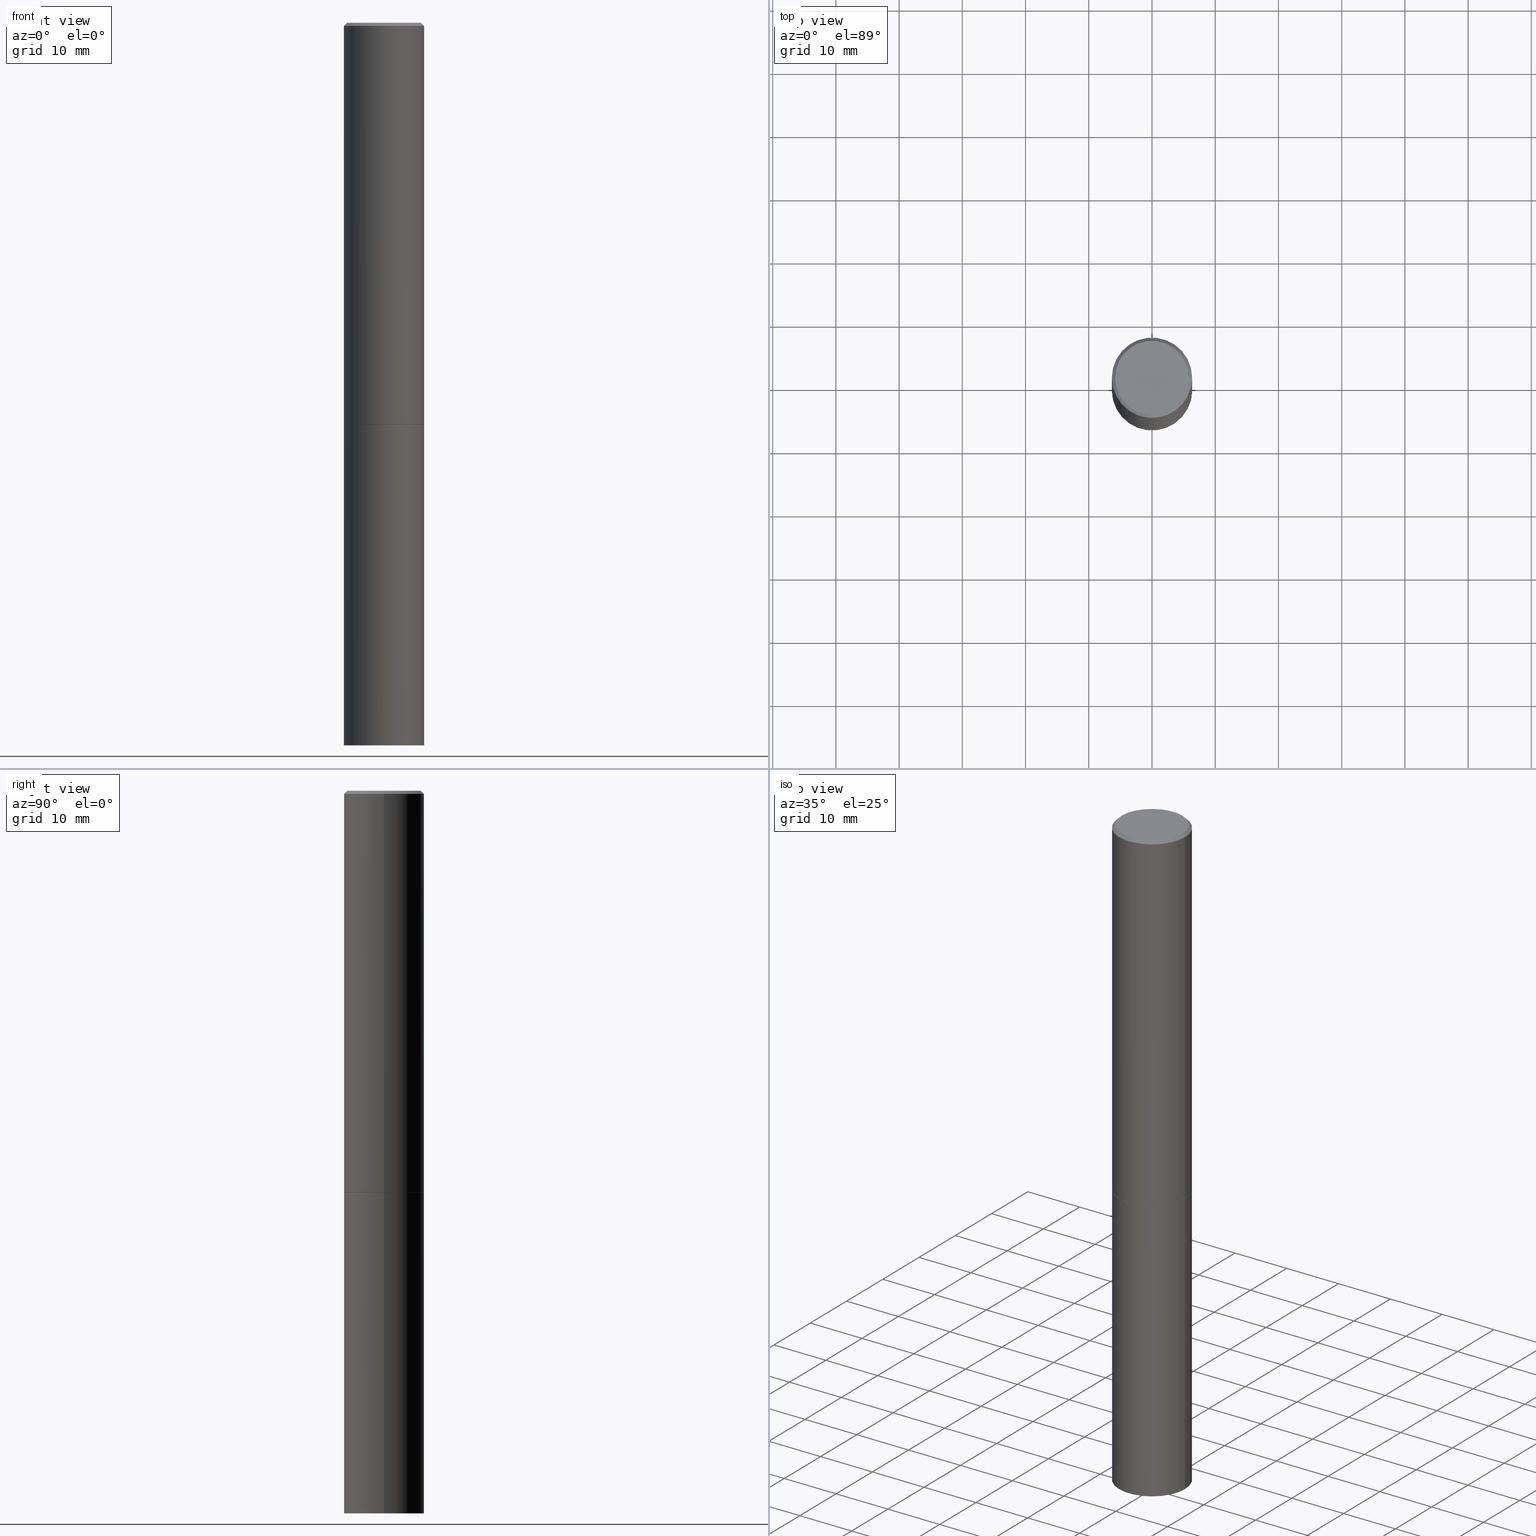
[diagram: canonical four-view strip — front | top / right | iso, engineering-drawing reading convention]
A machine part, canonical four-view strip (front | top / right | iso — engineering-drawing reading convention). The complete STEP part file that produces these views, byte-faithful:
ISO-10303-21;
HEADER;
FILE_DESCRIPTION (( 'STEP AP203' ),
    '1' );
FILE_NAME ('70482.STEP',
    '2024-02-29T03:01:47',
    ( '' ),
    ( '' ),
    'SwSTEP 2.0',
    'SolidWorks 2023',
    '' );
FILE_SCHEMA (( 'CONFIG_CONTROL_DESIGN' ));
ENDSEC;

DATA;
#1 = PERSON ( 'UNSPECIFIED', 'UNSPECIFIED', 'UNSPECIFIED', ('UNSPECIFIED'), ('UNSPECIFIED'), ('UNSPECIFIED') ) ;
#2 = VERTEX_POINT ( 'NONE', #188 ) ;
#3 =( GEOMETRIC_REPRESENTATION_CONTEXT ( 3 ) GLOBAL_UNCERTAINTY_ASSIGNED_CONTEXT ( ( #192 ) ) GLOBAL_UNIT_ASSIGNED_CONTEXT ( ( #276, #196, #26 ) ) REPRESENTATION_CONTEXT ( 'NONE', 'WORKASPACE' ) );
#4 = ORIENTED_EDGE ( 'NONE', *, *, #137, .T. ) ;
#5 = PRODUCT_DEFINITION ( 'UNKNOWN', '', #133, #258 ) ;
#6 = ORIENTED_EDGE ( 'NONE', *, *, #274, .F. ) ;
#7 = CIRCLE ( 'NONE', #44, 0.2500000000000000000 ) ;
#8 = ADVANCED_FACE ( 'NONE', ( #300 ), #41, .T. ) ;
#9 = PERSON_AND_ORGANIZATION ( #1, #114 ) ;
#10 = ORIENTED_EDGE ( 'NONE', *, *, #111, .F. ) ;
#11 = VERTEX_POINT ( 'NONE', #43 ) ;
#12 = DIRECTION ( 'NONE',  ( -2.445468806185136597E-29, 3.491481338843145583E-15, 1.000000000000000000 ) ) ;
#13 = AXIS2_PLACEMENT_3D ( 'NONE', #24, #243, #131 ) ;
#14 = PERSON_AND_ORGANIZATION_ROLE ( 'design_supplier' ) ;
#15 = CARTESIAN_POINT ( 'NONE',  ( 6.113672015462842613E-29, -8.728703347107864943E-15, -2.500000000000000000 ) ) ;
#16 = DIRECTION ( 'NONE',  ( -1.000000000000000000, 6.982962677686265922E-15, -4.876176775795935793E-29 ) ) ;
#17 = DIRECTION ( 'NONE',  ( -2.445468806185136597E-29, 3.491481338843145583E-15, 1.000000000000000000 ) ) ;
#18 = PERSON_AND_ORGANIZATION_ROLE ( 'classification_officer' ) ;
#19 = EDGE_CURVE ( 'NONE', #319, #142, #288, .T. ) ;
#20 = AXIS2_PLACEMENT_3D ( 'NONE', #336, #17, #134 ) ;
#21 =( LENGTH_UNIT ( ) NAMED_UNIT ( * ) SI_UNIT ( $, .METRE. ) );
#22 = DIRECTION ( 'NONE',  ( 1.000000000000000000, -6.982962677686265922E-15, 4.876176775795935793E-29 ) ) ;
#23 = DIRECTION ( 'NONE',  ( -2.445468806185136597E-29, 3.491481338843145583E-15, 1.000000000000000000 ) ) ;
#24 = CARTESIAN_POINT ( 'NONE',  ( 0.000000000000000000, 0.000000000000000000, 0.000000000000000000 ) ) ;
#25 = DIRECTION ( 'NONE',  ( 2.438088387897960049E-29, -3.491481338843145188E-15, -1.000000000000000000 ) ) ;
#26 =( NAMED_UNIT ( * ) SI_UNIT ( $, .STERADIAN. ) SOLID_ANGLE_UNIT ( ) );
#27 = CARTESIAN_POINT ( 'NONE',  ( -0.2499999999999999722, -2.621163906872689391E-15, -2.499000000000000110 ) ) ;
#28 = VERTEX_POINT ( 'NONE', #329 ) ;
#29 = FACE_OUTER_BOUND ( 'NONE', #270, .T. ) ;
#30 = EDGE_LOOP ( 'NONE', ( #344, #268, #66, #314 ) ) ;
#31 = ORIENTED_EDGE ( 'NONE', *, *, #278, .F. ) ;
#32 = COORDINATED_UNIVERSAL_TIME_OFFSET ( 5, 0, .BEHIND. ) ;
#33 = ORIENTED_EDGE ( 'NONE', *, *, #184, .F. ) ;
#34 = DIRECTION ( 'NONE',  ( 0.000000000000000000, 0.000000000000000000, 1.000000000000000000 ) ) ;
#35 = ORIENTED_EDGE ( 'NONE', *, *, #171, .F. ) ;
#36 = EDGE_CURVE ( 'NONE', #225, #116, #55, .T. ) ;
#37 = APPROVAL_DATE_TIME ( #352, #241 ) ;
#38 = AXIS2_PLACEMENT_3D ( 'NONE', #287, #211, #325 ) ;
#39 = CIRCLE ( 'NONE', #208, 0.2489999999999999991 ) ;
#40 = ORIENTED_EDGE ( 'NONE', *, *, #125, .T. ) ;
#41 = CYLINDRICAL_SURFACE ( 'NONE', #216, 0.2500000000000000000 ) ;
#42 = EDGE_CURVE ( 'NONE', #28, #273, #7, .T. ) ;
#43 = CARTESIAN_POINT ( 'NONE',  ( 0.2489999999999999991, -1.046746105385174718E-14, -2.500000000000000444 ) ) ;
#44 = AXIS2_PLACEMENT_3D ( 'NONE', #15, #130, #83 ) ;
#45 = CARTESIAN_POINT ( 'NONE',  ( 1.745740669421676527E-15, 0.2499999999999842903, -4.500000000000000888 ) ) ;
#46 = DIRECTION ( 'NONE',  ( 0.7071067811864267805, -2.468850131080992517E-15, 0.7071067811866682540 ) ) ;
#47 = FACE_OUTER_BOUND ( 'NONE', #294, .T. ) ;
#48 = DIRECTION ( 'NONE',  ( 1.000000000000000000, -6.982962677686269866E-15, 0.000000000000000000 ) ) ;
#49 = LOCAL_TIME ( 22, 1, 47.00000000000000000, #32 ) ;
#50 = LINE ( 'NONE', #284, #186 ) ;
#51 = FACE_OUTER_BOUND ( 'NONE', #233, .T. ) ;
#52 = DIRECTION ( 'NONE',  ( 0.7071067811865479058, -7.319954787623256045E-15, -0.7071067811865470176 ) ) ;
#53 = VERTEX_POINT ( 'NONE', #277 ) ;
#54 = DIRECTION ( 'NONE',  ( 1.000000000000000000, -6.982962677686266711E-15, 0.000000000000000000 ) ) ;
#55 = CIRCLE ( 'NONE', #272, 0.2499999999999996947 ) ;
#56 = LOCAL_TIME ( 22, 1, 47.00000000000000000, #356 ) ;
#57 = DIRECTION ( 'NONE',  ( 1.000000000000000000, -6.982962677686266711E-15, 0.000000000000000000 ) ) ;
#58 = APPROVAL_PERSON_ORGANIZATION ( #263, #241, #245 ) ;
#59 = ORIENTED_EDGE ( 'NONE', *, *, #310, .T. ) ;
#60 = ADVANCED_FACE ( 'NONE', ( #47 ), #246, .F. ) ;
#61 = CALENDAR_DATE ( 2024, 28, 2 ) ;
#62 = LOCAL_TIME ( 22, 1, 47.00000000000000000, #219 ) ;
#63 = EDGE_CURVE ( 'NONE', #261, #142, #80, .T. ) ;
#64 = DIRECTION ( 'NONE',  ( -2.445468806185136597E-29, 3.491481338843145583E-15, 1.000000000000000000 ) ) ;
#65 = PERSON_AND_ORGANIZATION ( #1, #114 ) ;
#66 = ORIENTED_EDGE ( 'NONE', *, *, #111, .T. ) ;
#67 = FACE_OUTER_BOUND ( 'NONE', #238, .T. ) ;
#68 = CIRCLE ( 'NONE', #205, 0.2500000000000000000 ) ;
#69 = AXIS2_PLACEMENT_3D ( 'NONE', #226, #309, #262 ) ;
#70 = ADVANCED_FACE ( 'NONE', ( #253 ), #327, .T. ) ;
#71 = ORIENTED_EDGE ( 'NONE', *, *, #171, .T. ) ;
#72 = FACE_OUTER_BOUND ( 'NONE', #353, .T. ) ;
#73 = VECTOR ( 'NONE', #52, 39.37007874015748854 ) ;
#74 = AXIS2_PLACEMENT_3D ( 'NONE', #254, #361, #112 ) ;
#75 = EDGE_CURVE ( 'NONE', #53, #273, #50, .T. ) ;
#76 = CARTESIAN_POINT ( 'NONE',  ( 4.890937612370289799E-31, -6.982962677686315028E-17, -0.02000000000000006981 ) ) ;
#77 = APPROVAL_ROLE ( '' ) ;
#78 = DIRECTION ( 'NONE',  ( -2.445468806185136597E-29, 3.491481338843145583E-15, 1.000000000000000000 ) ) ;
#79 = APPROVAL_STATUS ( 'not_yet_approved' ) ;
#80 = LINE ( 'NONE', #160, #303 ) ;
#81 = DIRECTION ( 'NONE',  ( 1.000000000000000000, -6.982962677686269866E-15, 0.000000000000000000 ) ) ;
#82 = AXIS2_PLACEMENT_3D ( 'NONE', #93, #158, #209 ) ;
#83 = DIRECTION ( 'NONE',  ( 1.000000000000000000, -6.982962677686266711E-15, 0.000000000000000000 ) ) ;
#84 = DIRECTION ( 'NONE',  ( -2.445468806185136877E-29, 3.491481338843145188E-15, 1.000000000000000000 ) ) ;
#85 = CC_DESIGN_DATE_AND_TIME_ASSIGNMENT ( #242, #301, ( #92 ) ) ;
#86 = DIRECTION ( 'NONE',  ( 1.000000000000000000, -6.982962677686266711E-15, 4.876176775795935793E-29 ) ) ;
#87 = ORIENTED_EDGE ( 'NONE', *, *, #316, .F. ) ;
#88 = APPLICATION_CONTEXT ( 'configuration controlled 3d designs of mechanical parts and assemblies' ) ;
#89 = AXIS2_PLACEMENT_3D ( 'NONE', #215, #282, #22 ) ;
#90 = ORIENTED_EDGE ( 'NONE', *, *, #75, .T. ) ;
#91 = AXIS2_PLACEMENT_3D ( 'NONE', #76, #78, #54 ) ;
#92 = SECURITY_CLASSIFICATION ( '', '', #357 ) ;
#93 = CARTESIAN_POINT ( 'NONE',  ( 6.111226546656657010E-29, -8.725211865769021935E-15, -2.499000000000000110 ) ) ;
#94 = CARTESIAN_POINT ( 'NONE',  ( 0.000000000000000000, 0.000000000000000000, 0.000000000000000000 ) ) ;
#95 = PERSON_AND_ORGANIZATION ( #1, #114 ) ;
#96 = DIRECTION ( 'NONE',  ( 1.000000000000000000, -6.982962677686266711E-15, 0.000000000000000000 ) ) ;
#97 = EDGE_LOOP ( 'NONE', ( #231, #59, #204, #122 ) ) ;
#98 = ORIENTED_EDGE ( 'NONE', *, *, #200, .T. ) ;
#99 = AXIS2_PLACEMENT_3D ( 'NONE', #330, #203, #280 ) ;
#100 = EDGE_CURVE ( 'NONE', #2, #148, #179, .T. ) ;
#101 = DIRECTION ( 'NONE',  ( 2.445468806185136597E-29, -3.491481338843145583E-15, -1.000000000000000000 ) ) ;
#102 = APPROVAL_DATE_TIME ( #129, #251 ) ;
#103 = CARTESIAN_POINT ( 'NONE',  ( -0.2499999999999996947, 1.675911042644701407E-15, -0.02000000000000006981 ) ) ;
#104 = CIRCLE ( 'NONE', #153, 0.2500000000000000000 ) ;
#105 = AXIS2_PLACEMENT_3D ( 'NONE', #285, #25, #138 ) ;
#106 = PERSON_AND_ORGANIZATION ( #1, #114 ) ;
#107 = CARTESIAN_POINT ( 'NONE',  ( -0.2499999999999996947, 1.675911042644701407E-15, -0.02000000000000006981 ) ) ;
#108 = CARTESIAN_POINT ( 'NONE',  ( 0.2489999999999999991, -1.046746105385174718E-14, -2.500000000000000444 ) ) ;
#109 = DIRECTION ( 'NONE',  ( 2.445468806185136597E-29, -3.491481338843145583E-15, -1.000000000000000000 ) ) ;
#110 = DIRECTION ( 'NONE',  ( -2.445468806185136877E-29, 3.491481338843145188E-15, 1.000000000000000000 ) ) ;
#111 = EDGE_CURVE ( 'NONE', #2, #116, #191, .T. ) ;
#112 = DIRECTION ( 'NONE',  ( 1.000000000000000000, -6.982962677686269866E-15, 0.000000000000000000 ) ) ;
#113 = AXIS2_PLACEMENT_3D ( 'NONE', #255, #260, #86 ) ;
#114 = ORGANIZATION ( 'UNSPECIFIED', 'UNSPECIFIED', '' ) ;
#115 = CARTESIAN_POINT ( 'NONE',  ( 0.2500000000000000000, -1.047095253519058861E-14, -2.499000000000000110 ) ) ;
#116 = VERTEX_POINT ( 'NONE', #103 ) ;
#117 = FACE_OUTER_BOUND ( 'NONE', #97, .T. ) ;
#118 = ADVANCED_FACE ( 'NONE', ( #72 ), #190, .T. ) ;
#119 = ORIENTED_EDGE ( 'NONE', *, *, #36, .F. ) ;
#120 = APPROVAL_STATUS ( 'not_yet_approved' ) ;
#121 = ORIENTED_EDGE ( 'NONE', *, *, #125, .F. ) ;
#122 = ORIENTED_EDGE ( 'NONE', *, *, #166, .F. ) ;
#123 = DATE_AND_TIME ( #182, #275 ) ;
#124 = PERSON_AND_ORGANIZATION_ROLE ( 'design_owner' ) ;
#125 = EDGE_CURVE ( 'NONE', #53, #178, #104, .T. ) ;
#126 = ORIENTED_EDGE ( 'NONE', *, *, #166, .T. ) ;
#127 = CIRCLE ( 'NONE', #91, 0.2499999999999996947 ) ;
#128 = CC_DESIGN_APPROVAL ( #251, ( #92 ) ) ;
#129 = DATE_AND_TIME ( #135, #56 ) ;
#130 = DIRECTION ( 'NONE',  ( -2.445468806185136597E-29, 3.491481338843145583E-15, 1.000000000000000000 ) ) ;
#131 = DIRECTION ( 'NONE',  ( 1.000000000000000000, -6.982962677686266711E-15, 4.876176775795936353E-29 ) ) ;
#132 = VECTOR ( 'NONE', #328, 39.37007874015748854 ) ;
#133 = PRODUCT_DEFINITION_FORMATION_WITH_SPECIFIED_SOURCE ( 'ANY', '', #239, .NOT_KNOWN. ) ;
#134 = DIRECTION ( 'NONE',  ( 1.000000000000000000, -6.982962677686269866E-15, 0.000000000000000000 ) ) ;
#135 = CALENDAR_DATE ( 2024, 28, 2 ) ;
#136 = DIRECTION ( 'NONE',  ( 1.000000000000000000, -6.982962677686266711E-15, 4.876176775795936353E-29 ) ) ;
#137 = EDGE_CURVE ( 'NONE', #273, #28, #68, .T. ) ;
#138 = DIRECTION ( 'NONE',  ( -1.000000000000000000, 6.982962677686265922E-15, -4.876176775795935793E-29 ) ) ;
#139 = CARTESIAN_POINT ( 'NONE',  ( 0.000000000000000000, 0.000000000000000000, 0.000000000000000000 ) ) ;
#140 = CIRCLE ( 'NONE', #248, 0.2500000000000000000 ) ;
#141 = AXIS2_PLACEMENT_3D ( 'NONE', #193, #109, #173 ) ;
#142 = VERTEX_POINT ( 'NONE', #27 ) ;
#143 = ADVANCED_FACE ( 'NONE', ( #271 ), #234, .F. ) ;
#144 = ORIENTED_EDGE ( 'NONE', *, *, #137, .F. ) ;
#145 = EDGE_LOOP ( 'NONE', ( #181, #150, #236, #10 ) ) ;
#146 = CALENDAR_DATE ( 2024, 28, 2 ) ;
#147 = CC_DESIGN_PERSON_AND_ORGANIZATION_ASSIGNMENT ( #106, #18, ( #92 ) ) ;
#148 = VERTEX_POINT ( 'NONE', #313 ) ;
#149 = DIRECTION ( 'NONE',  ( -2.445468806185136597E-29, 3.491481338843145583E-15, 1.000000000000000000 ) ) ;
#150 = ORIENTED_EDGE ( 'NONE', *, *, #299, .T. ) ;
#151 = PRODUCT_RELATED_PRODUCT_CATEGORY ( 'detail', '', ( #239 ) ) ;
#152 = MANIFOLD_SOLID_BREP ( 'Body-Move/Copy2[1]', #340 ) ;
#153 = AXIS2_PLACEMENT_3D ( 'NONE', #358, #64, #349 ) ;
#154 = VECTOR ( 'NONE', #198, 39.37007874015748143 ) ;
#155 = ORIENTED_EDGE ( 'NONE', *, *, #42, .F. ) ;
#156 = CARTESIAN_POINT ( 'NONE',  ( 0.000000000000000000, 0.000000000000000000, 0.000000000000000000 ) ) ;
#157 = MANIFOLD_SOLID_BREP ( 'Body-Move/Copy2[2]', #174 ) ;
#158 = DIRECTION ( 'NONE',  ( -2.445468806185136597E-29, 3.491481338843145583E-15, 1.000000000000000000 ) ) ;
#159 = CIRCLE ( 'NONE', #354, 0.2299999999999995937 ) ;
#160 = CARTESIAN_POINT ( 'NONE',  ( -0.2489999999999999991, -6.959451935065217064E-15, -2.500000000000000444 ) ) ;
#161 = ADVANCED_FACE ( 'NONE', ( #67 ), #170, .T. ) ;
#162 = DIRECTION ( 'NONE',  ( 2.438088387897960049E-29, -3.491481338843145188E-15, -1.000000000000000000 ) ) ;
#163 = CARTESIAN_POINT ( 'NONE',  ( 0.000000000000000000, 0.000000000000000000, 0.000000000000000000 ) ) ;
#164 = AXIS2_PLACEMENT_3D ( 'NONE', #308, #101, #217 ) ;
#165 = FACE_OUTER_BOUND ( 'NONE', #348, .T. ) ;
#166 = EDGE_CURVE ( 'NONE', #142, #319, #140, .T. ) ;
#167 = PLANE ( 'NONE',  #105 ) ;
#168 = DIRECTION ( 'NONE',  ( 1.000000000000000000, -6.982962677686266711E-15, 0.000000000000000000 ) ) ;
#169 = FACE_OUTER_BOUND ( 'NONE', #145, .T. ) ;
#170 = CYLINDRICAL_SURFACE ( 'NONE', #113, 0.2499999999999998612 ) ;
#171 = EDGE_CURVE ( 'NONE', #178, #28, #279, .T. ) ;
#172 = EDGE_LOOP ( 'NONE', ( #212, #335 ) ) ;
#173 = DIRECTION ( 'NONE',  ( -1.000000000000000000, 6.982962677686266711E-15, 0.000000000000000000 ) ) ;
#174 = CLOSED_SHELL ( 'NONE', ( #351, #161, #304, #70, #322, #331, #60, #143 ) ) ;
#175 = ORIENTED_EDGE ( 'NONE', *, *, #63, .T. ) ;
#176 = ORIENTED_EDGE ( 'NONE', *, *, #42, .T. ) ;
#177 = DIRECTION ( 'NONE',  ( 1.000000000000000000, 0.000000000000000000, 0.000000000000000000 ) ) ;
#178 = VERTEX_POINT ( 'NONE', #291 ) ;
#179 = CIRCLE ( 'NONE', #13, 0.2299999999999995937 ) ;
#180 = CC_DESIGN_PERSON_AND_ORGANIZATION_ASSIGNMENT ( #95, #210, ( #5 ) ) ;
#181 = ORIENTED_EDGE ( 'NONE', *, *, #247, .F. ) ;
#182 = CALENDAR_DATE ( 2024, 28, 2 ) ;
#183 = MECHANICAL_CONTEXT ( 'NONE', #88, 'mechanical' ) ;
#184 = EDGE_CURVE ( 'NONE', #178, #53, #266, .T. ) ;
#185 = PERSON_AND_ORGANIZATION ( #1, #114 ) ;
#186 = VECTOR ( 'NONE', #110, 39.37007874015748143 ) ;
#187 = CONICAL_SURFACE ( 'NONE', #20, 0.2489999999999999991, 0.7853981633972775267 ) ;
#188 = CARTESIAN_POINT ( 'NONE',  ( -0.2299999999999995937, 1.640996229256269955E-15, -1.135408596578603879E-29 ) ) ;
#189 = ORIENTED_EDGE ( 'NONE', *, *, #316, .T. ) ;
#190 = PLANE ( 'NONE',  #230 ) ;
#191 = LINE ( 'NONE', #107, #132 ) ;
#192 = UNCERTAINTY_MEASURE_WITH_UNIT (LENGTH_MEASURE( 1.000000000000000082E-05 ), #276, 'distance_accuracy_value', 'NONE');
#193 = CARTESIAN_POINT ( 'NONE',  ( 4.890937612370289799E-31, -6.982962677686315028E-17, -0.02000000000000006981 ) ) ;
#194 = SHAPE_DEFINITION_REPRESENTATION ( #214, #362 ) ;
#195 = LINE ( 'NONE', #228, #320 ) ;
#196 =( NAMED_UNIT ( * ) PLANE_ANGLE_UNIT ( ) SI_UNIT ( $, .RADIAN. ) );
#197 = DIRECTION ( 'NONE',  ( -0.7071067811864267805, 7.493145998869918709E-15, 0.7071067811866682540 ) ) ;
#198 = DIRECTION ( 'NONE',  ( -2.445468806185136877E-29, 3.491481338843145188E-15, 1.000000000000000000 ) ) ;
#199 = CARTESIAN_POINT ( 'NONE',  ( 0.2499999999999996947, -1.784954126219743822E-15, -0.02000000000000006981 ) ) ;
#200 = EDGE_CURVE ( 'NONE', #319, #225, #195, .T. ) ;
#201 = CARTESIAN_POINT ( 'NONE',  ( 6.111226546656657010E-29, -8.725211865769021935E-15, -2.499000000000000110 ) ) ;
#202 = ORIENTED_EDGE ( 'NONE', *, *, #19, .T. ) ;
#203 = DIRECTION ( 'NONE',  ( -2.445468806185136597E-29, 3.491481338843145583E-15, 1.000000000000000000 ) ) ;
#204 = ORIENTED_EDGE ( 'NONE', *, *, #274, .T. ) ;
#205 = AXIS2_PLACEMENT_3D ( 'NONE', #237, #149, #96 ) ;
#206 = ORIENTED_EDGE ( 'NONE', *, *, #184, .T. ) ;
#207 = APPROVAL_ROLE ( '' ) ;
#208 = AXIS2_PLACEMENT_3D ( 'NONE', #221, #332, #81 ) ;
#209 = DIRECTION ( 'NONE',  ( 1.000000000000000000, -6.982962677686266711E-15, 0.000000000000000000 ) ) ;
#210 = PERSON_AND_ORGANIZATION_ROLE ( 'creator' ) ;
#211 = DIRECTION ( 'NONE',  ( 2.438088387897960049E-29, -3.491481338843145188E-15, -1.000000000000000000 ) ) ;
#212 = ORIENTED_EDGE ( 'NONE', *, *, #100, .T. ) ;
#213 = CC_DESIGN_PERSON_AND_ORGANIZATION_ASSIGNMENT ( #185, #14, ( #133 ) ) ;
#214 = PRODUCT_DEFINITION_SHAPE ( 'NONE', 'NONE',  #5 ) ;
#215 = CARTESIAN_POINT ( 'NONE',  ( 6.113672015462842613E-29, -8.728703347107864943E-15, -2.500000000000000000 ) ) ;
#216 = AXIS2_PLACEMENT_3D ( 'NONE', #156, #12, #240 ) ;
#217 = DIRECTION ( 'NONE',  ( -1.000000000000000000, 6.982962677686266711E-15, 0.000000000000000000 ) ) ;
#218 = CARTESIAN_POINT ( 'NONE',  ( -0.2500000000000000000, 1.776356839400250465E-15, -1.229733772563726445E-29 ) ) ;
#219 = COORDINATED_UNIVERSAL_TIME_OFFSET ( 5, 0, .BEHIND. ) ;
#220 = CARTESIAN_POINT ( 'NONE',  ( -0.2499999999999998612, 1.776356839400249479E-15, -1.229733772563725745E-29 ) ) ;
#221 = CARTESIAN_POINT ( 'NONE',  ( 6.113672015462842613E-29, -8.728703347107866520E-15, -2.500000000000000444 ) ) ;
#222 = CARTESIAN_POINT ( 'NONE',  ( 4.890937612370289799E-31, -6.982962677686315028E-17, -0.02000000000000006981 ) ) ;
#223 = CC_DESIGN_APPROVAL ( #241, ( #5 ) ) ;
#224 = CYLINDRICAL_SURFACE ( 'NONE', #295, 0.2500000000000000000 ) ;
#225 = VERTEX_POINT ( 'NONE', #199 ) ;
#226 = CARTESIAN_POINT ( 'NONE',  ( 0.000000000000000000, 0.000000000000000000, 0.000000000000000000 ) ) ;
#227 = ADVANCED_FACE ( 'NONE', ( #165 ), #224, .T. ) ;
#228 = CARTESIAN_POINT ( 'NONE',  ( 0.2499999999999998612, -1.745740669421565692E-15, 1.219044193948983248E-29 ) ) ;
#229 = ORIENTED_EDGE ( 'NONE', *, *, #310, .F. ) ;
#230 = AXIS2_PLACEMENT_3D ( 'NONE', #45, #162, #16 ) ;
#231 = ORIENTED_EDGE ( 'NONE', *, *, #63, .F. ) ;
#232 = APPLICATION_PROTOCOL_DEFINITION ( 'international standard', 'config_control_design', 1994, #88 ) ;
#233 = EDGE_LOOP ( 'NONE', ( #4, #176 ) ) ;
#234 = PLANE ( 'NONE',  #38 ) ;
#235 = AXIS2_PLACEMENT_3D ( 'NONE', #259, #312, #48 ) ;
#236 = ORIENTED_EDGE ( 'NONE', *, *, #36, .T. ) ;
#237 = CARTESIAN_POINT ( 'NONE',  ( 6.113672015462842613E-29, -8.728703347107864943E-15, -2.500000000000000000 ) ) ;
#238 = EDGE_LOOP ( 'NONE', ( #202, #189, #119, #338 ) ) ;
#239 = PRODUCT ( '70482', '70482', '', ( #183 ) ) ;
#240 = DIRECTION ( 'NONE',  ( 1.000000000000000000, -6.982962677686266711E-15, 4.876176775795935793E-29 ) ) ;
#241 = APPROVAL ( #120, 'UNSPECIFIED' ) ;
#242 = DATE_AND_TIME ( #302, #62 ) ;
#243 = DIRECTION ( 'NONE',  ( -2.445468806185136597E-29, 3.491481338843145583E-15, 1.000000000000000000 ) ) ;
#244 = PERSON_AND_ORGANIZATION ( #1, #114 ) ;
#245 = APPROVAL_ROLE ( '' ) ;
#246 = PLANE ( 'NONE',  #89 ) ;
#247 = EDGE_CURVE ( 'NONE', #148, #2, #159, .T. ) ;
#248 = AXIS2_PLACEMENT_3D ( 'NONE', #201, #365, #57 ) ;
#249 = AXIS2_PLACEMENT_3D ( 'NONE', #94, #34, #177 ) ;
#250 = FACE_OUTER_BOUND ( 'NONE', #297, .T. ) ;
#251 = APPROVAL ( #79, 'UNSPECIFIED' ) ;
#252 = CARTESIAN_POINT ( 'NONE',  ( 0.2500000000000000000, -1.047444401652943162E-14, -2.500000000000000000 ) ) ;
#253 = FACE_OUTER_BOUND ( 'NONE', #30, .T. ) ;
#254 = CARTESIAN_POINT ( 'NONE',  ( 6.113672015462842613E-29, -8.728703347107866520E-15, -2.500000000000000444 ) ) ;
#255 = CARTESIAN_POINT ( 'NONE',  ( 0.000000000000000000, 0.000000000000000000, 0.000000000000000000 ) ) ;
#256 = VECTOR ( 'NONE', #46, 39.37007874015748143 ) ;
#257 = CC_DESIGN_DATE_AND_TIME_ASSIGNMENT ( #350, #269, ( #5 ) ) ;
#258 = DESIGN_CONTEXT ( 'detailed design', #355, 'design' ) ;
#259 = CARTESIAN_POINT ( 'NONE',  ( 6.113672015462842613E-29, -8.728703347107866520E-15, -2.500000000000000444 ) ) ;
#260 = DIRECTION ( 'NONE',  ( -2.445468806185136597E-29, 3.491481338843145583E-15, 1.000000000000000000 ) ) ;
#261 = VERTEX_POINT ( 'NONE', #359 ) ;
#262 = DIRECTION ( 'NONE',  ( 1.000000000000000000, -6.982962677686266711E-15, 4.876176775795935793E-29 ) ) ;
#263 = PERSON_AND_ORGANIZATION ( #1, #114 ) ;
#264 = EDGE_CURVE ( 'NONE', #116, #225, #127, .T. ) ;
#265 = EDGE_LOOP ( 'NONE', ( #40, #71, #144, #318 ) ) ;
#266 = CIRCLE ( 'NONE', #99, 0.2500000000000000000 ) ;
#267 = CC_DESIGN_APPROVAL ( #345, ( #133 ) ) ;
#268 = ORIENTED_EDGE ( 'NONE', *, *, #100, .F. ) ;
#269 = DATE_TIME_ROLE ( 'creation_date' ) ;
#270 = EDGE_LOOP ( 'NONE', ( #87, #126, #98, #342 ) ) ;
#271 = FACE_OUTER_BOUND ( 'NONE', #172, .T. ) ;
#272 = AXIS2_PLACEMENT_3D ( 'NONE', #222, #306, #168 ) ;
#273 = VERTEX_POINT ( 'NONE', #252 ) ;
#274 = EDGE_CURVE ( 'NONE', #11, #319, #366, .T. ) ;
#275 = LOCAL_TIME ( 22, 1, 47.00000000000000000, #323 ) ;
#276 =( CONVERSION_BASED_UNIT ( 'INCH', #311 ) LENGTH_UNIT ( ) NAMED_UNIT ( #343 ) );
#277 = CARTESIAN_POINT ( 'NONE',  ( 0.2500000000000000000, -1.745740669421572357E-14, -4.500000000000000000 ) ) ;
#278 = EDGE_CURVE ( 'NONE', #11, #261, #347, .T. ) ;
#279 = LINE ( 'NONE', #218, #281 ) ;
#280 = DIRECTION ( 'NONE',  ( 1.000000000000000000, -6.982962677686270655E-15, 0.000000000000000000 ) ) ;
#281 = VECTOR ( 'NONE', #84, 39.37007874015748143 ) ;
#282 = DIRECTION ( 'NONE',  ( -2.438088387897960049E-29, 3.491481338843145188E-15, 1.000000000000000000 ) ) ;
#283 = DIRECTION ( 'NONE',  ( 1.000000000000000000, -6.982962677686266711E-15, 4.876176775795935793E-29 ) ) ;
#284 = CARTESIAN_POINT ( 'NONE',  ( 0.2500000000000000000, -1.745740669421566678E-15, 1.219044193948983948E-29 ) ) ;
#285 = CARTESIAN_POINT ( 'NONE',  ( 1.745740669421627617E-15, 0.2499999999999912570, -2.500000000000001332 ) ) ;
#286 = CC_DESIGN_PERSON_AND_ORGANIZATION_ASSIGNMENT ( #65, #326, ( #133 ) ) ;
#287 = CARTESIAN_POINT ( 'NONE',  ( 1.606081415867838306E-15, 0.2299999999999995937, -8.030407079339221114E-16 ) ) ;
#288 = CIRCLE ( 'NONE', #82, 0.2500000000000000000 ) ;
#289 = ORIENTED_EDGE ( 'NONE', *, *, #278, .T. ) ;
#290 = LOCAL_TIME ( 22, 1, 47.00000000000000000, #296 ) ;
#291 = CARTESIAN_POINT ( 'NONE',  ( -0.2500000000000000000, -1.044382784655076046E-14, -4.500000000000000000 ) ) ;
#292 = CC_DESIGN_PERSON_AND_ORGANIZATION_ASSIGNMENT ( #298, #124, ( #239 ) ) ;
#293 = ORIENTED_EDGE ( 'NONE', *, *, #19, .F. ) ;
#294 = EDGE_LOOP ( 'NONE', ( #31, #229 ) ) ;
#295 = AXIS2_PLACEMENT_3D ( 'NONE', #139, #315, #283 ) ;
#296 = COORDINATED_UNIVERSAL_TIME_OFFSET ( 5, 0, .BEHIND. ) ;
#297 = EDGE_LOOP ( 'NONE', ( #289, #175, #293, #6 ) ) ;
#298 = PERSON_AND_ORGANIZATION ( #1, #114 ) ;
#299 = EDGE_CURVE ( 'NONE', #148, #225, #360, .T. ) ;
#300 = FACE_OUTER_BOUND ( 'NONE', #265, .T. ) ;
#301 = DATE_TIME_ROLE ( 'classification_date' ) ;
#302 = CALENDAR_DATE ( 2024, 28, 2 ) ;
#303 = VECTOR ( 'NONE', #197, 39.37007874015748143 ) ;
#304 = ADVANCED_FACE ( 'NONE', ( #169 ), #317, .T. ) ;
#305 = CYLINDRICAL_SURFACE ( 'NONE', #69, 0.2499999999999998612 ) ;
#306 = DIRECTION ( 'NONE',  ( -2.445468806185136597E-29, 3.491481338843145583E-15, 1.000000000000000000 ) ) ;
#307 = CARTESIAN_POINT ( 'NONE',  ( 0.2499999999999996947, -1.784954126219743822E-15, -0.02000000000000006981 ) ) ;
#308 = CARTESIAN_POINT ( 'NONE',  ( 4.890937612370289799E-31, -6.982962677686315028E-17, -0.02000000000000006981 ) ) ;
#309 = DIRECTION ( 'NONE',  ( -2.445468806185136597E-29, 3.491481338843145583E-15, 1.000000000000000000 ) ) ;
#310 = EDGE_CURVE ( 'NONE', #261, #11, #39, .T. ) ;
#311 = LENGTH_MEASURE_WITH_UNIT ( LENGTH_MEASURE( 0.02539999999999999897 ), #21 );
#312 = DIRECTION ( 'NONE',  ( -2.445468806185136597E-29, 3.491481338843145583E-15, 1.000000000000000000 ) ) ;
#313 = CARTESIAN_POINT ( 'NONE',  ( 0.2299999999999995937, -1.681434332853596842E-15, 1.149527484987431259E-29 ) ) ;
#314 = ORIENTED_EDGE ( 'NONE', *, *, #264, .T. ) ;
#315 = DIRECTION ( 'NONE',  ( -2.445468806185136597E-29, 3.491481338843145583E-15, 1.000000000000000000 ) ) ;
#316 = EDGE_CURVE ( 'NONE', #142, #116, #364, .T. ) ;
#317 = CONICAL_SURFACE ( 'NONE', #141, 0.2499999999999996947, 0.7853981633974489451 ) ;
#318 = ORIENTED_EDGE ( 'NONE', *, *, #75, .F. ) ;
#319 = VERTEX_POINT ( 'NONE', #115 ) ;
#320 = VECTOR ( 'NONE', #334, 39.37007874015748143 ) ;
#321 = CC_DESIGN_SECURITY_CLASSIFICATION ( #92, ( #133 ) ) ;
#322 = ADVANCED_FACE ( 'NONE', ( #29 ), #305, .T. ) ;
#323 = COORDINATED_UNIVERSAL_TIME_OFFSET ( 5, 0, .BEHIND. ) ;
#324 = APPROVAL_DATE_TIME ( #123, #345 ) ;
#325 = DIRECTION ( 'NONE',  ( -1.000000000000000000, 6.982962677686265922E-15, -4.876176775795935793E-29 ) ) ;
#326 = PERSON_AND_ORGANIZATION_ROLE ( 'creator' ) ;
#327 = CONICAL_SURFACE ( 'NONE', #164, 0.2499999999999996947, 0.7853981633974489451 ) ;
#328 = DIRECTION ( 'NONE',  ( -0.7071067811865479058, 2.468850131082261399E-15, -0.7071067811865470176 ) ) ;
#329 = CARTESIAN_POINT ( 'NONE',  ( -0.2500000000000000000, -1.044382784655076046E-14, -2.500000000000000000 ) ) ;
#330 = CARTESIAN_POINT ( 'NONE',  ( 1.100460962783311469E-28, -1.571166602479415690E-14, -4.500000000000000000 ) ) ;
#331 = ADVANCED_FACE ( 'NONE', ( #117 ), #187, .T. ) ;
#332 = DIRECTION ( 'NONE',  ( -2.445468806185136597E-29, 3.491481338843145583E-15, 1.000000000000000000 ) ) ;
#333 = CONICAL_SURFACE ( 'NONE', #74, 0.2489999999999999991, 0.7853981633972775267 ) ;
#334 = DIRECTION ( 'NONE',  ( -2.445468806185136877E-29, 3.491481338843145188E-15, 1.000000000000000000 ) ) ;
#335 = ORIENTED_EDGE ( 'NONE', *, *, #247, .T. ) ;
#336 = CARTESIAN_POINT ( 'NONE',  ( 6.113672015462842613E-29, -8.728703347107866520E-15, -2.500000000000000444 ) ) ;
#337 = ADVANCED_FACE ( 'NONE', ( #51 ), #167, .F. ) ;
#338 = ORIENTED_EDGE ( 'NONE', *, *, #200, .F. ) ;
#339 = APPLICATION_PROTOCOL_DEFINITION ( 'international standard', 'config_control_design', 1994, #355 ) ;
#340 = CLOSED_SHELL ( 'NONE', ( #8, #118, #337, #227 ) ) ;
#341 = APPROVAL_PERSON_ORGANIZATION ( #244, #251, #77 ) ;
#342 = ORIENTED_EDGE ( 'NONE', *, *, #264, .F. ) ;
#343 = DIMENSIONAL_EXPONENTS ( 1.000000000000000000, 0.000000000000000000, 0.000000000000000000, 0.000000000000000000, 0.000000000000000000, 0.000000000000000000, 0.000000000000000000 ) ;
#344 = ORIENTED_EDGE ( 'NONE', *, *, #299, .F. ) ;
#345 = APPROVAL ( #346, 'UNSPECIFIED' ) ;
#346 = APPROVAL_STATUS ( 'not_yet_approved' ) ;
#347 = CIRCLE ( 'NONE', #235, 0.2489999999999999991 ) ;
#348 = EDGE_LOOP ( 'NONE', ( #35, #206, #90, #155 ) ) ;
#349 = DIRECTION ( 'NONE',  ( 1.000000000000000000, -6.982962677686270655E-15, 0.000000000000000000 ) ) ;
#350 = DATE_AND_TIME ( #146, #290 ) ;
#351 = ADVANCED_FACE ( 'NONE', ( #250 ), #333, .T. ) ;
#352 = DATE_AND_TIME ( #61, #49 ) ;
#353 = EDGE_LOOP ( 'NONE', ( #121, #33 ) ) ;
#354 = AXIS2_PLACEMENT_3D ( 'NONE', #163, #23, #136 ) ;
#355 = APPLICATION_CONTEXT ( 'configuration controlled 3d designs of mechanical parts and assemblies' ) ;
#356 = COORDINATED_UNIVERSAL_TIME_OFFSET ( 5, 0, .BEHIND. ) ;
#357 = SECURITY_CLASSIFICATION_LEVEL ( 'unclassified' ) ;
#358 = CARTESIAN_POINT ( 'NONE',  ( 1.100460962783311469E-28, -1.571166602479415690E-14, -4.500000000000000000 ) ) ;
#359 = CARTESIAN_POINT ( 'NONE',  ( -0.2489999999999999991, -6.954153480716993873E-15, -2.500000000000000444 ) ) ;
#360 = LINE ( 'NONE', #307, #73 ) ;
#361 = DIRECTION ( 'NONE',  ( -2.445468806185136597E-29, 3.491481338843145583E-15, 1.000000000000000000 ) ) ;
#362 = ADVANCED_BREP_SHAPE_REPRESENTATION ( '70482', ( #152, #157, #249 ), #3 ) ;
#363 = APPROVAL_PERSON_ORGANIZATION ( #9, #345, #207 ) ;
#364 = LINE ( 'NONE', #220, #154 ) ;
#365 = DIRECTION ( 'NONE',  ( -2.445468806185136597E-29, 3.491481338843145583E-15, 1.000000000000000000 ) ) ;
#366 = LINE ( 'NONE', #108, #256 ) ;
ENDSEC;
END-ISO-10303-21;
